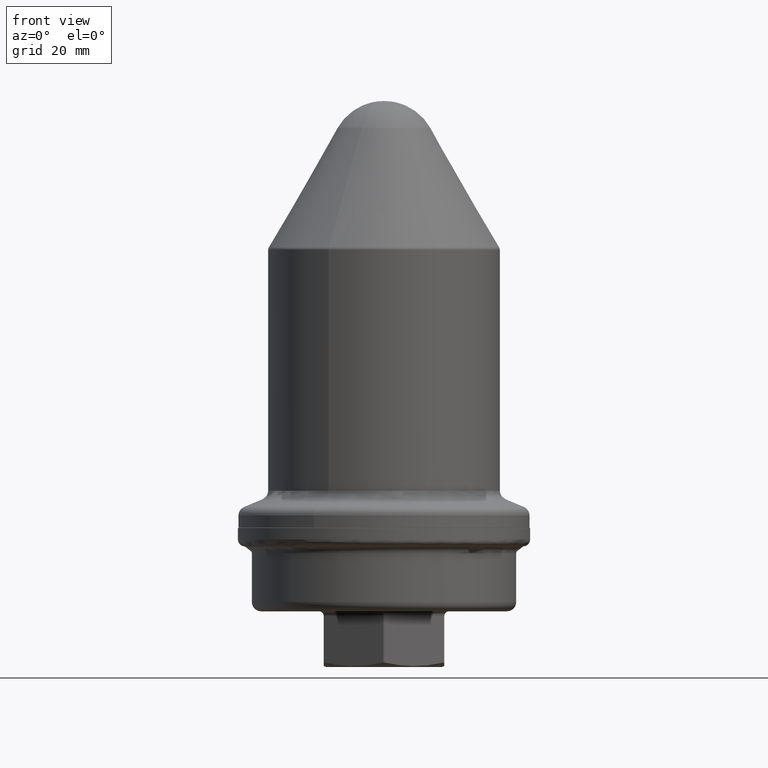
[diagram: clean part render]
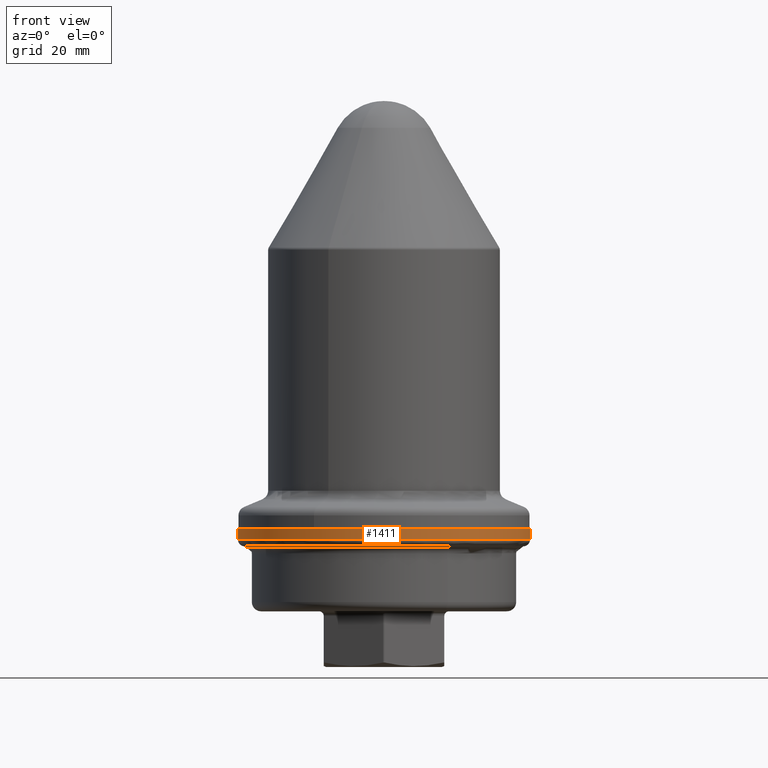
[diagram: same view with one face highlighted and labeled with its STEP entity id]
A machine part, front view. The second image highlights one B-rep face of the part: STEP entity #1411.
In plain terms, the highlighted cylindrical surface (partial cylindrical patch) has radius 31.5 mm, axis along (0, 0, 1).
Its self-contained STEP definition (entity closure, byte-faithful):
#127=AXIS2_PLACEMENT_3D('Circle Axis2P3D',#125,#126,$) ;
#1384=AXIS2_PLACEMENT_3D('Cylinder Axis2P3D',#1381,#1382,#1383) ;
#1402=AXIS2_PLACEMENT_3D('Circle Axis2P3D',#1400,#1401,$) ;
#122=CARTESIAN_POINT('Vertex',(-31.5,3.85763741731E-015,29.9)) ;
#125=CARTESIAN_POINT('Axis2P3D Location',(-3.16288574205E-034,1.7763568394E-015,29.9)) ;
#129=CARTESIAN_POINT('Vertex',(31.5,-7.71527483463E-015,29.9)) ;
#1381=CARTESIAN_POINT('Axis2P3D Location',(0.,0.,15.)) ;
#1386=CARTESIAN_POINT('Line Origine',(31.5,-7.71527483463E-015,15.)) ;
#1390=CARTESIAN_POINT('Vertex',(31.5,-7.71527483463E-015,27.5)) ;
#1393=CARTESIAN_POINT('Line Origine',(-31.5,3.85763741731E-015,15.)) ;
#1397=CARTESIAN_POINT('Vertex',(-31.5,3.85763741731E-015,27.5)) ;
#1400=CARTESIAN_POINT('Axis2P3D Location',(0.,0.,27.5)) ;
#126=DIRECTION('Axis2P3D Direction',(-6.26948772702E-017,-2.76185092764E-017,1.)) ;
#1382=DIRECTION('Axis2P3D Direction',(0.,0.,1.)) ;
#1383=DIRECTION('Axis2P3D XDirection',(1.,0.,0.)) ;
#1387=DIRECTION('Vector Direction',(0.,0.,1.)) ;
#1394=DIRECTION('Vector Direction',(0.,0.,1.)) ;
#1401=DIRECTION('Axis2P3D Direction',(0.,0.,1.)) ;
#1388=VECTOR('Line Direction',#1387,1.) ;
#1395=VECTOR('Line Direction',#1394,1.) ;
#1406=ORIENTED_EDGE('',*,*,#1392,.T.) ;
#1407=ORIENTED_EDGE('',*,*,#131,.F.) ;
#1408=ORIENTED_EDGE('',*,*,#1399,.F.) ;
#1409=ORIENTED_EDGE('',*,*,#1404,.T.) ;
#1411=ADVANCED_FACE('Hauptk\X2\00F6\X0\rper',(#1410),#1385,.T.) ;
#128=CIRCLE('generated circle',#127,31.5) ;
#1403=CIRCLE('generated circle',#1402,31.5) ;
#1385=CYLINDRICAL_SURFACE('generated cylinder',#1384,31.5) ;
#131=EDGE_CURVE('',#123,#130,#128,.T.) ;
#1392=EDGE_CURVE('',#1391,#130,#1389,.T.) ;
#1399=EDGE_CURVE('',#1398,#123,#1396,.T.) ;
#1404=EDGE_CURVE('',#1398,#1391,#1403,.T.) ;
#1405=EDGE_LOOP('',(#1406,#1407,#1408,#1409)) ;
#1410=FACE_OUTER_BOUND('',#1405,.T.) ;
#1389=LINE('Line',#1386,#1388) ;
#1396=LINE('Line',#1393,#1395) ;
#123=VERTEX_POINT('',#122) ;
#130=VERTEX_POINT('',#129) ;
#1391=VERTEX_POINT('',#1390) ;
#1398=VERTEX_POINT('',#1397) ;